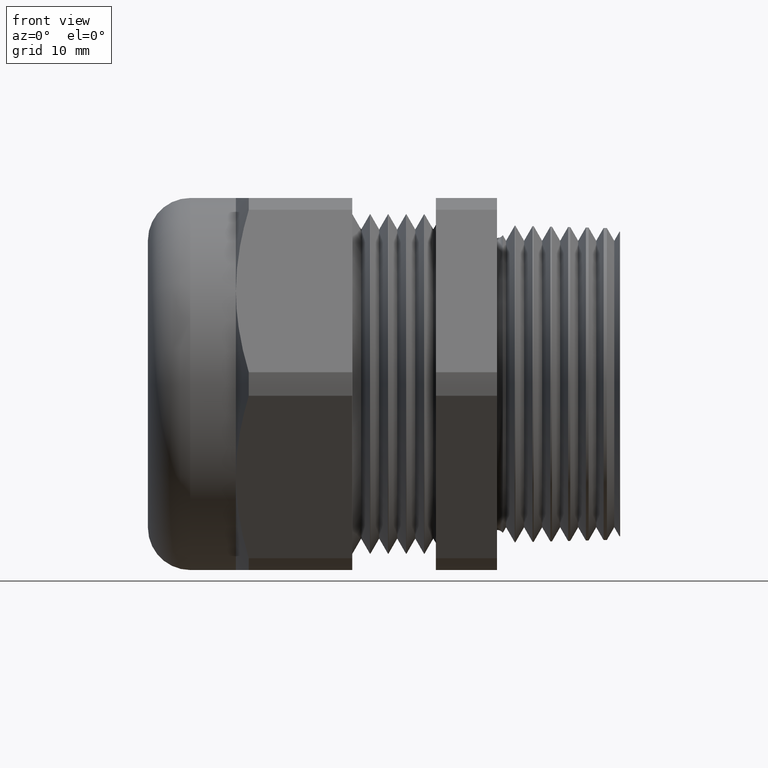
[diagram: clean part render]
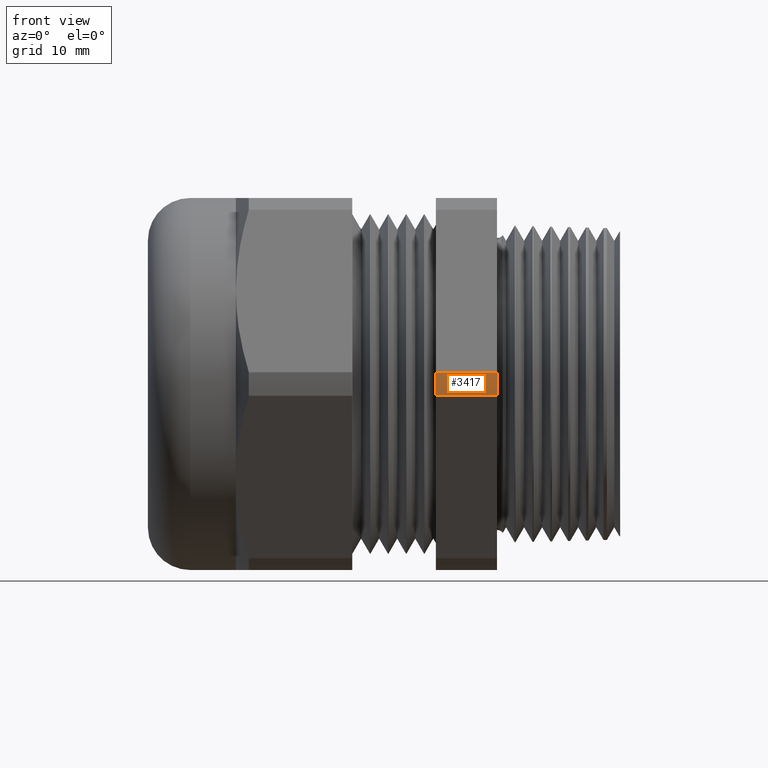
[diagram: same view with one face highlighted and labeled with its STEP entity id]
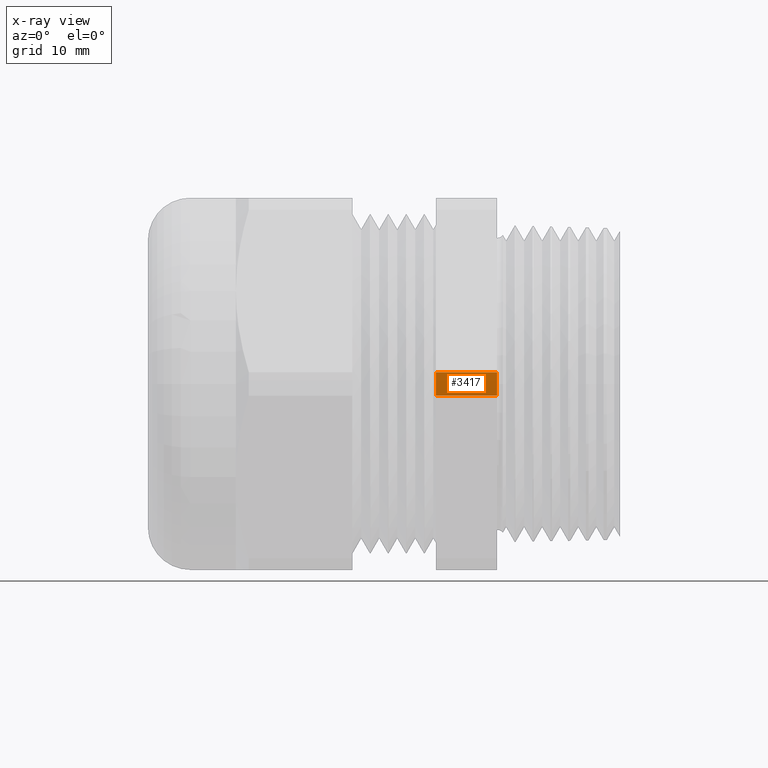
[diagram: x-ray of the same camera — body ghosted, the highlighted face saturated]
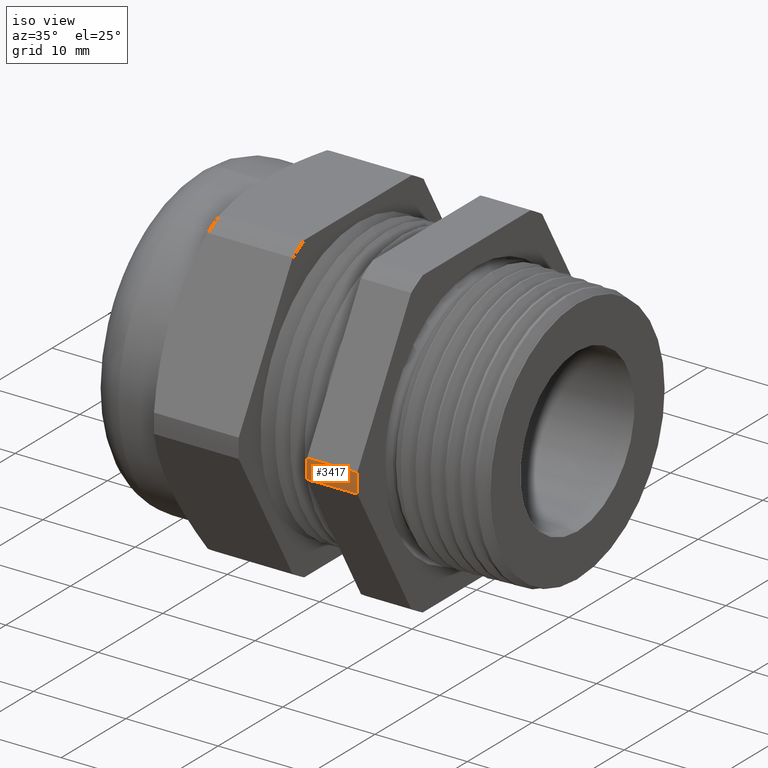
[diagram: same view with one face highlighted and labeled with its STEP entity id]
A machine part, front view. The second image highlights one B-rep face of the part: STEP entity #3417.
The next image is the same camera in x-ray: the body ghosted, the highlighted face saturated — about 0% of this face is hidden behind the body in this view.
A second angle (iso view) of the same face is appended — the face is thin or edge-on in the first view.
In plain terms, the highlighted cylindrical surface (partial cylindrical patch) has radius 18.4912 mm, axis along (-1, 0, 0).
Its self-contained STEP definition (entity closure, byte-faithful):
#52 = VERTEX_POINT ( 'NONE', #632 ) ;
#64 = VERTEX_POINT ( 'NONE', #615 ) ;
#67 = EDGE_CURVE ( 'NONE', #52, #64, #609, .T. ) ;
#607 = CARTESIAN_POINT ( 'NONE',  ( 0.0000000000000000000, 0.0000000000000000000, 0.0000000000000000000 ) ) ;
#608 = AXIS2_PLACEMENT_3D ( 'NONE', #607, #670, #669 ) ;
#609 = CIRCLE ( 'NONE', #608, 0.7280000000000000900 ) ;
#615 = CARTESIAN_POINT ( 'NONE',  ( 0.0000000000000000000, -0.7268402752278255700, 0.04107571431805941800 ) ) ;
#632 = CARTESIAN_POINT ( 'NONE',  ( 0.0000000000000000000, -0.7268402752278255700, -0.04107571431805972400 ) ) ;
#669 = DIRECTION ( 'NONE',  ( 0.0000000000000000000, 0.0000000000000000000, 1.000000000000000000 ) ) ;
#670 = DIRECTION ( 'NONE',  ( -1.000000000000000000, 0.0000000000000000000, 0.0000000000000000000 ) ) ;
#1683 = CARTESIAN_POINT ( 'NONE',  ( -0.2139303482587066300, -0.7268402752278255700, 0.04107571431805941800 ) ) ;
#1714 = DIRECTION ( 'NONE',  ( 0.0000000000000000000, 0.0000000000000000000, 1.000000000000000000 ) ) ;
#1715 = DIRECTION ( 'NONE',  ( -1.000000000000000000, 0.0000000000000000000, 0.0000000000000000000 ) ) ;
#1716 = AXIS2_PLACEMENT_3D ( 'NONE', #1722, #1715, #1714 ) ;
#1717 = CIRCLE ( 'NONE', #1716, 0.7280000000000000900 ) ;
#1722 = CARTESIAN_POINT ( 'NONE',  ( -0.2139303482587064900, 0.0000000000000000000, 0.0000000000000000000 ) ) ;
#2574 = DIRECTION ( 'NONE',  ( 0.0000000000000000000, 0.0000000000000000000, 1.000000000000000000 ) ) ;
#2575 = DIRECTION ( 'NONE',  ( -1.000000000000000000, 0.0000000000000000000, 0.0000000000000000000 ) ) ;
#2576 = CARTESIAN_POINT ( 'NONE',  ( -0.7238591030180623300, 0.0000000000000000000, 0.0000000000000000000 ) ) ;
#2577 = AXIS2_PLACEMENT_3D ( 'NONE', #2576, #2575, #2574 ) ;
#2579 = CYLINDRICAL_SURFACE ( 'NONE', #2577, 0.7280000000000000900 ) ;
#2580 = FACE_OUTER_BOUND ( 'NONE', #3406, .T. ) ;
#2794 = DIRECTION ( 'NONE',  ( 1.000000000000000000, 0.0000000000000000000, 0.0000000000000000000 ) ) ;
#2795 = VECTOR ( 'NONE', #2794, 39.37007874015748100 ) ;
#2796 = CARTESIAN_POINT ( 'NONE',  ( -2.992185896283379200, -0.7268402752278255700, 0.04107571431805941800 ) ) ;
#2797 = LINE ( 'NONE', #2796, #2795 ) ;
#2798 = CARTESIAN_POINT ( 'NONE',  ( -0.2139303482587064900, -0.7268402752278256800, -0.04107571431805973800 ) ) ;
#2799 = DIRECTION ( 'NONE',  ( 1.000000000000000000, 0.0000000000000000000, 0.0000000000000000000 ) ) ;
#2800 = VECTOR ( 'NONE', #2799, 39.37007874015748100 ) ;
#2801 = CARTESIAN_POINT ( 'NONE',  ( -2.992185896283379200, -0.7268402752278255700, -0.04107571431805972400 ) ) ;
#2807 = LINE ( 'NONE', #2801, #2800 ) ;
#2978 = ORIENTED_EDGE ( 'NONE', *, *, #2995, .F. ) ;
#2984 = VERTEX_POINT ( 'NONE', #1683 ) ;
#2995 = EDGE_CURVE ( 'NONE', #3559, #2984, #1717, .T. ) ;
#3404 = ORIENTED_EDGE ( 'NONE', *, *, #3556, .T. ) ;
#3406 = EDGE_LOOP ( 'NONE', ( #3404, #3557, #3558, #2978 ) ) ;
#3417 = ADVANCED_FACE ( 'NONE', ( #2580 ), #2579, .T. ) ;
#3556 = EDGE_CURVE ( 'NONE', #3559, #52, #2807, .T. ) ;
#3557 = ORIENTED_EDGE ( 'NONE', *, *, #67, .T. ) ;
#3558 = ORIENTED_EDGE ( 'NONE', *, *, #3560, .F. ) ;
#3559 = VERTEX_POINT ( 'NONE', #2798 ) ;
#3560 = EDGE_CURVE ( 'NONE', #2984, #64, #2797, .T. ) ;